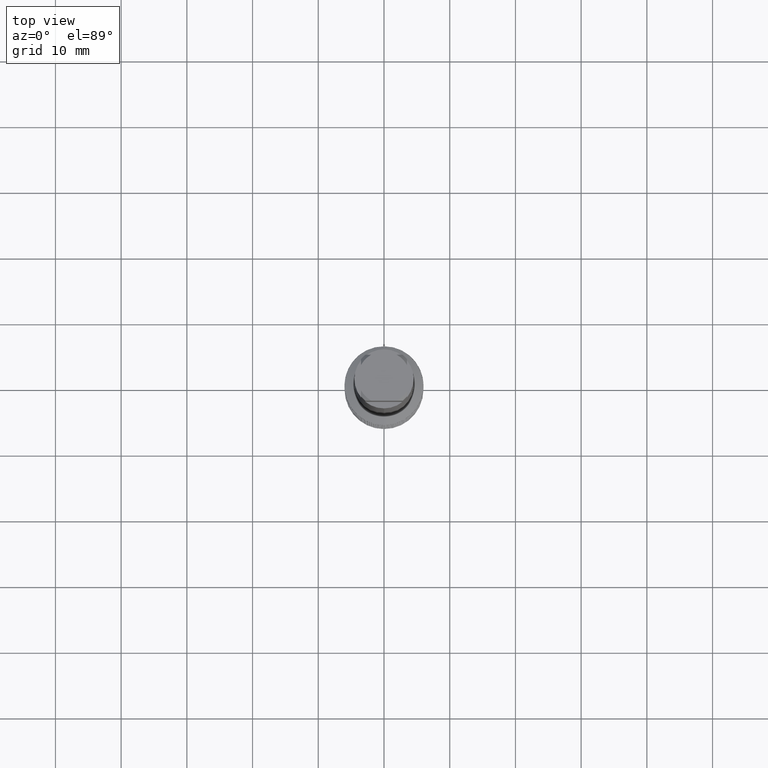
[diagram: clean part render]
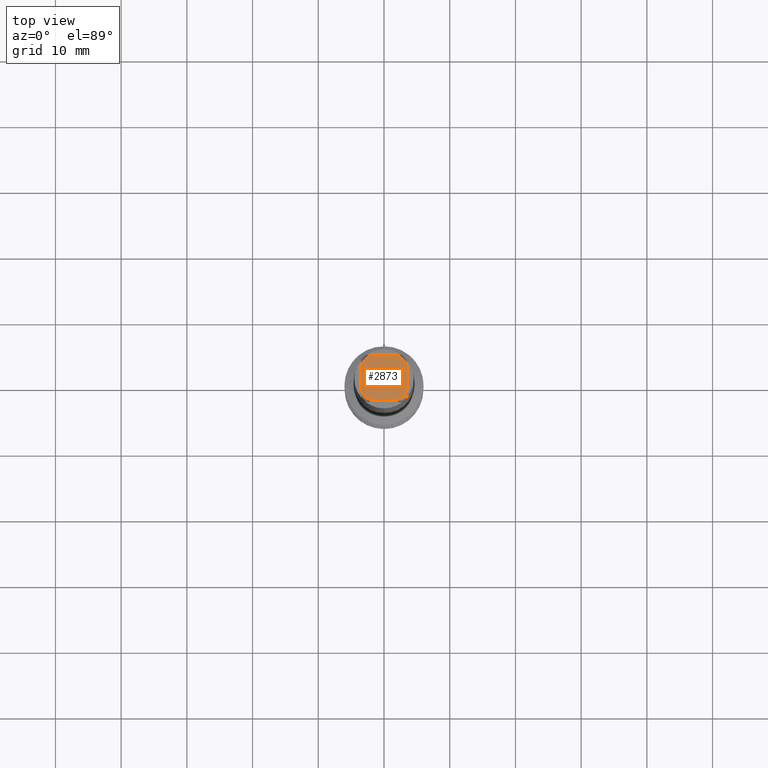
[diagram: same view with one face highlighted and labeled with its STEP entity id]
A machine part, top view. The second image highlights one B-rep face of the part: STEP entity #2873.
In plain terms, the highlighted planar face has unit normal (-0, 0, 1).
Its self-contained STEP definition (entity closure, byte-faithful):
#1183=VERTEX_POINT('',#3490);
#1335=EDGE_CURVE('',#1645,#1183,#3663,.T.);
#1631=EDGE_CURVE('',#1787,#2343,#3987,.T.);
#1645=VERTEX_POINT('',#4001);
#1787=VERTEX_POINT('',#4160);
#1839=EDGE_CURVE('',#2273,#3387,#4218,.T.);
#2273=VERTEX_POINT('',#4697);
#2295=EDGE_CURVE('',#1645,#2771,#4720,.T.);
#2343=VERTEX_POINT('',#4771);
#2409=VERTEX_POINT('',#4843);
#2569=EDGE_CURVE('',#2273,#2343,#5014,.T.);
#2771=VERTEX_POINT('',#5239);
#2873=ADVANCED_FACE('',(#5352),#5353,.T.);
#2941=EDGE_CURVE('',#1787,#2771,#5426,.T.);
#3235=EDGE_CURVE('',#2409,#1183,#5750,.T.);
#3275=EDGE_CURVE('',#2409,#3387,#5793,.T.);
#3387=VERTEX_POINT('',#5918);
#3490=CARTESIAN_POINT('',(-1.93649167310371,3.5,0.0));
#3663=LINE('',#6253,#6254);
#3987=CIRCLE('',#6752,4.0);
#4001=CARTESIAN_POINT('',(1.93649167310371,3.5,0.0));
#4160=CARTESIAN_POINT('',(3.5,-1.93649167310371,0.0));
#4218=CIRCLE('',#7070,4.0);
#4697=CARTESIAN_POINT('',(-1.93649167310371,-3.5,0.0));
#4720=CIRCLE('',#7808,4.0);
#4771=CARTESIAN_POINT('',(1.93649167310371,-3.5,0.0));
#4843=CARTESIAN_POINT('',(-3.5,1.93649167310371,0.0));
#5014=LINE('',#8251,#8252);
#5239=CARTESIAN_POINT('',(3.5,1.93649167310371,0.0));
#5352=FACE_OUTER_BOUND('',#8717,.T.);
#5353=PLANE('',#8718);
#5426=LINE('',#8830,#8831);
#5750=CIRCLE('',#9282,4.0);
#5793=LINE('',#9342,#9343);
#5918=CARTESIAN_POINT('',(-3.5,-1.93649167310371,0.0));
#6253=CARTESIAN_POINT('',(0.0,3.5,0.0));
#6254=VECTOR('',#9897,1.0);
#6752=AXIS2_PLACEMENT_3D('',#10275,#10276,#10277);
#7070=AXIS2_PLACEMENT_3D('',#10592,#10593,#10594);
#7808=AXIS2_PLACEMENT_3D('',#11231,#11232,#11233);
#8251=CARTESIAN_POINT('',(0.0,-3.5,0.0));
#8252=VECTOR('',#11551,1.0);
#8717=EDGE_LOOP('',(#11997,#11998,#11999,#12000,#12001,#12002,#12003,#12004));
#8718=AXIS2_PLACEMENT_3D('',#12005,#12006,#12007);
#8830=CARTESIAN_POINT('',(3.5,1.0,0.0));
#8831=VECTOR('',#12098,1.0);
#9282=AXIS2_PLACEMENT_3D('',#12515,#12516,#12517);
#9342=CARTESIAN_POINT('',(-3.5,1.0,0.0));
#9343=VECTOR('',#12573,1.0);
#9897=DIRECTION('',(-1.0,0.0,0.0));
#10275=CARTESIAN_POINT('',(0.0,0.0,0.0));
#10276=DIRECTION('',(0.0,0.0,-1.0));
#10277=DIRECTION('',(0.0,1.0,0.0));
#10592=CARTESIAN_POINT('',(0.0,0.0,0.0));
#10593=DIRECTION('',(0.0,0.0,-1.0));
#10594=DIRECTION('',(0.0,1.0,0.0));
#11231=CARTESIAN_POINT('',(0.0,0.0,0.0));
#11232=DIRECTION('',(0.0,0.0,-1.0));
#11233=DIRECTION('',(0.0,1.0,0.0));
#11551=DIRECTION('',(1.0,0.0,0.0));
#11997=ORIENTED_EDGE('',*,*,#3275,.T.);
#11998=ORIENTED_EDGE('',*,*,#1839,.F.);
#11999=ORIENTED_EDGE('',*,*,#2569,.T.);
#12000=ORIENTED_EDGE('',*,*,#1631,.F.);
#12001=ORIENTED_EDGE('',*,*,#2941,.T.);
#12002=ORIENTED_EDGE('',*,*,#2295,.F.);
#12003=ORIENTED_EDGE('',*,*,#1335,.T.);
#12004=ORIENTED_EDGE('',*,*,#3235,.F.);
#12005=CARTESIAN_POINT('',(0.0,2.0,0.0));
#12006=DIRECTION('',(-0.0,0.0,1.0));
#12007=DIRECTION('',(0.0,-1.0,0.0));
#12098=DIRECTION('',(-0.0,1.0,0.0));
#12515=CARTESIAN_POINT('',(0.0,0.0,0.0));
#12516=DIRECTION('',(0.0,0.0,-1.0));
#12517=DIRECTION('',(0.0,1.0,0.0));
#12573=DIRECTION('',(-0.0,-1.0,0.0));